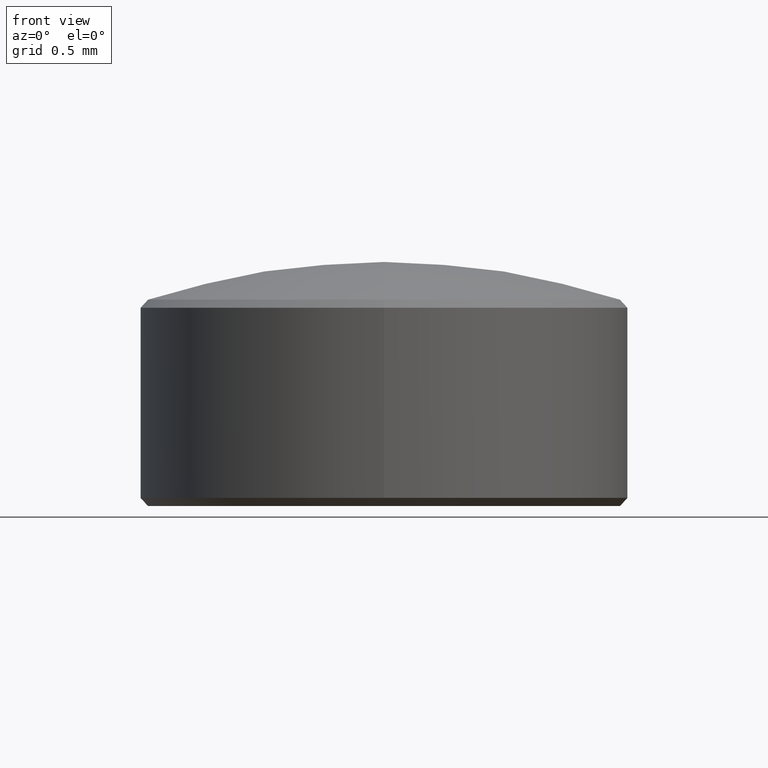
[diagram: clean part render]
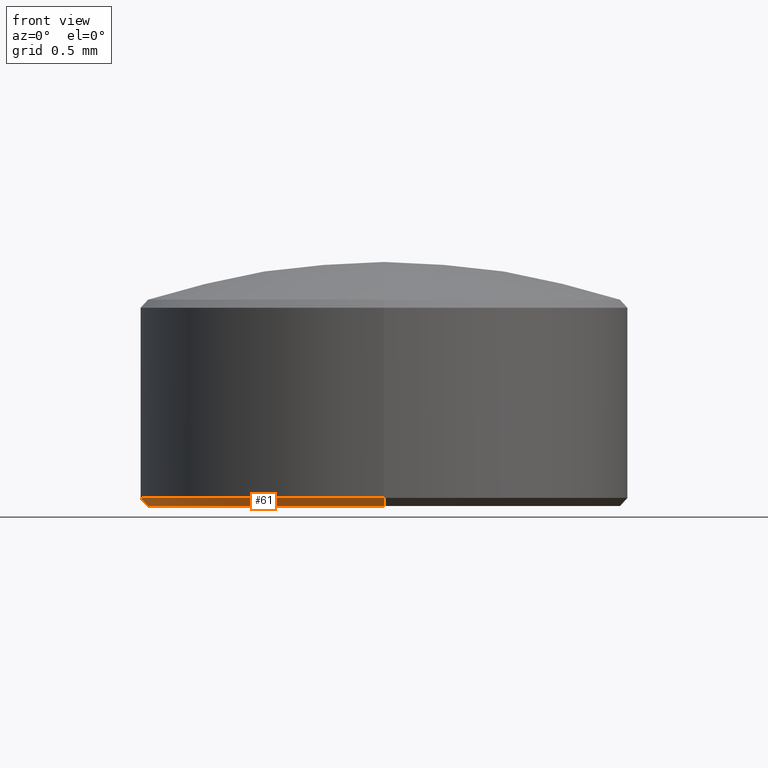
[diagram: same view with one face highlighted and labeled with its STEP entity id]
A machine part, front view. The second image highlights one B-rep face of the part: STEP entity #61.
In plain terms, the highlighted conical surface has half-angle 45 deg.
Its self-contained STEP definition (entity closure, byte-faithful):
#9 = VERTEX_POINT ( 'NONE', #236 ) ;
#18 = DIRECTION ( 'NONE',  ( 8.659560562354837948E-17, 0.7071067811865396902, 0.7071067811865553443 ) ) ;
#26 = DIRECTION ( 'NONE',  ( 0.0000000000000000000, -1.224646799147353207E-16, 1.000000000000000000 ) ) ;
#27 = ORIENTED_EDGE ( 'NONE', *, *, #219, .F. ) ;
#28 = DIRECTION ( 'NONE',  ( -0.0000000000000000000, 1.224646799147353207E-16, -1.000000000000000000 ) ) ;
#30 = EDGE_CURVE ( 'NONE', #258, #9, #210, .T. ) ;
#34 = VECTOR ( 'NONE', #149, 1000.000000000000114 ) ;
#47 = CARTESIAN_POINT ( 'NONE',  ( 0.8048939134660000327, 2.761868098657955795, 1.891295987042919124 ) ) ;
#51 = ORIENTED_EDGE ( 'NONE', *, *, #278, .T. ) ;
#54 = ORIENTED_EDGE ( 'NONE', *, *, #244, .F. ) ;
#61 = ADVANCED_FACE ( 'NONE', ( #89 ), #238, .T. ) ;
#70 = CARTESIAN_POINT ( 'NONE',  ( 0.8048939134660000327, -0.1881319013420442166, 1.941295987042919613 ) ) ;
#73 = CIRCLE ( 'NONE', #248, 1.500000000000000000 ) ;
#89 = FACE_OUTER_BOUND ( 'NONE', #147, .T. ) ;
#90 = AXIS2_PLACEMENT_3D ( 'NONE', #182, #91, #136 ) ;
#91 = DIRECTION ( 'NONE',  ( 0.0000000000000000000, -1.224646799147353207E-16, 1.000000000000000000 ) ) ;
#97 = DIRECTION ( 'NONE',  ( 0.0000000000000000000, 1.000000000000000000, 1.445602896647339163E-16 ) ) ;
#113 = ORIENTED_EDGE ( 'NONE', *, *, #30, .F. ) ;
#118 = AXIS2_PLACEMENT_3D ( 'NONE', #240, #28, #126 ) ;
#126 = DIRECTION ( 'NONE',  ( 0.0000000000000000000, 1.000000000000000000, 1.495451272393799296E-16 ) ) ;
#131 = CARTESIAN_POINT ( 'NONE',  ( 0.8048939134659998107, -0.1381319013420442832, 1.891295987042918680 ) ) ;
#136 = DIRECTION ( 'NONE',  ( 0.0000000000000000000, -1.000000000000000000, -1.495451272393799049E-16 ) ) ;
#147 = EDGE_LOOP ( 'NONE', ( #113, #54, #51, #27 ) ) ;
#149 = DIRECTION ( 'NONE',  ( 0.0000000000000000000, -0.7071067811865399122, 0.7071067811865551223 ) ) ;
#155 = LINE ( 'NONE', #131, #34 ) ;
#168 = CARTESIAN_POINT ( 'NONE',  ( 0.8048939134659998107, 1.311868098657955839, 1.941295987042919835 ) ) ;
#176 = CARTESIAN_POINT ( 'NONE',  ( 0.8048939134660000327, 2.761868098657955795, 1.891295987042919124 ) ) ;
#182 = CARTESIAN_POINT ( 'NONE',  ( 0.8048939134659998107, 1.311868098657955839, 1.891295987042918902 ) ) ;
#196 = VECTOR ( 'NONE', #18, 1000.000000000000114 ) ;
#199 = VERTEX_POINT ( 'NONE', #268 ) ;
#210 = LINE ( 'NONE', #176, #196 ) ;
#219 = EDGE_CURVE ( 'NONE', #9, #235, #73, .T. ) ;
#235 = VERTEX_POINT ( 'NONE', #70 ) ;
#236 = CARTESIAN_POINT ( 'NONE',  ( 0.8048939134659998107, 2.811868098657956061, 1.941295987042920057 ) ) ;
#238 = CONICAL_SURFACE ( 'NONE', #90, 1.450000000000000178, 0.7853981633974373988 ) ;
#240 = CARTESIAN_POINT ( 'NONE',  ( 0.8048939134659998107, 1.311868098657955839, 1.891295987042918902 ) ) ;
#244 = EDGE_CURVE ( 'NONE', #199, #258, #270, .T. ) ;
#248 = AXIS2_PLACEMENT_3D ( 'NONE', #168, #26, #97 ) ;
#258 = VERTEX_POINT ( 'NONE', #47 ) ;
#268 = CARTESIAN_POINT ( 'NONE',  ( 0.8048939134659998107, -0.1381319013420442832, 1.891295987042918680 ) ) ;
#270 = CIRCLE ( 'NONE', #118, 1.449999999999999956 ) ;
#278 = EDGE_CURVE ( 'NONE', #199, #235, #155, .T. ) ;